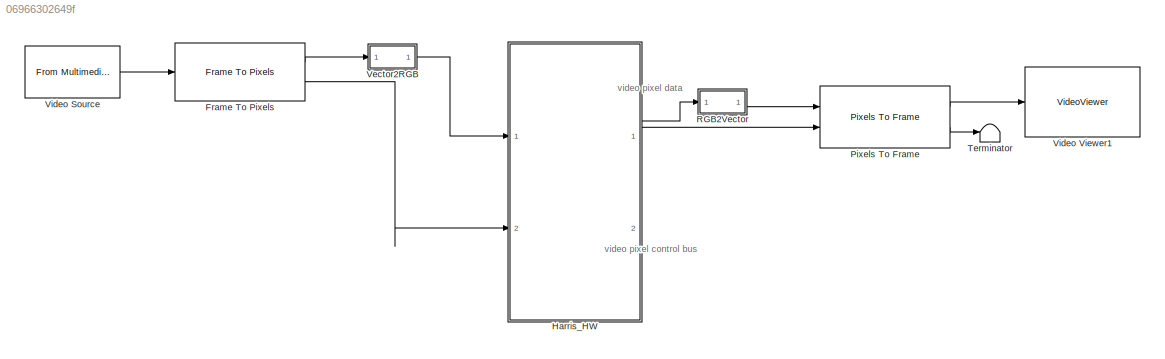
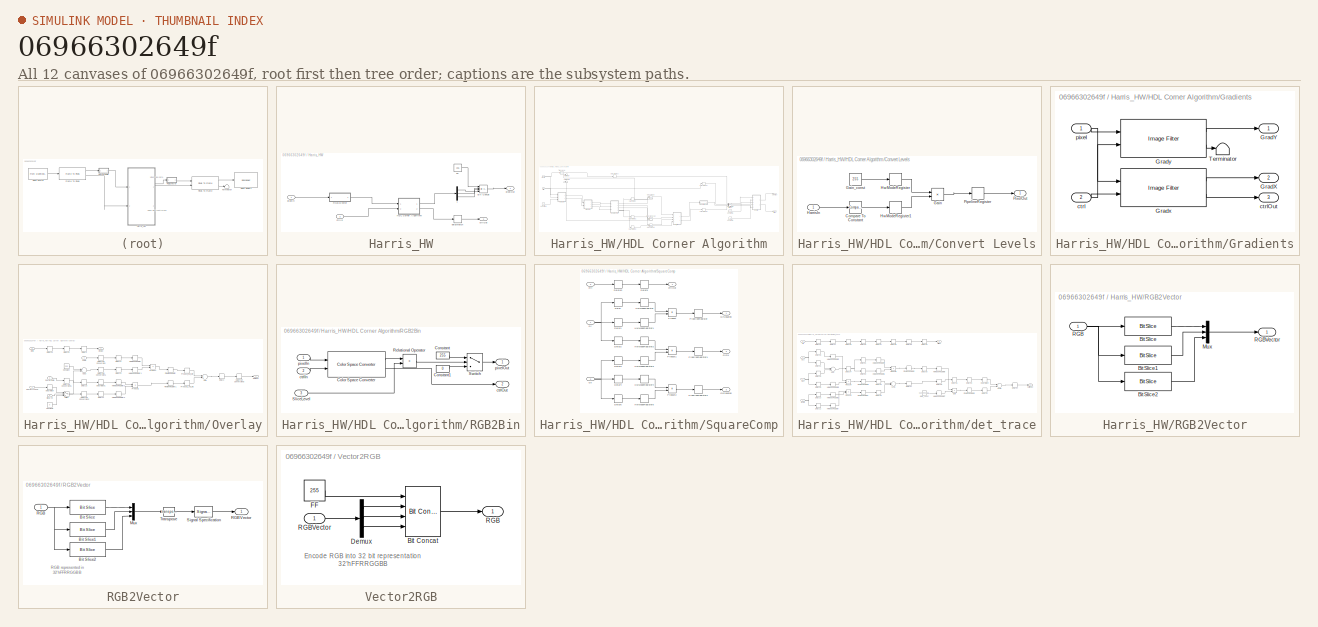
[diagram: thumbnail index - all 12 canvases of the model, root first then tree order]
MODEL slx_06966302649f
KIND model
CONFIG AbsTol = auto
CONFIG EnableMultiTasking = off
CONFIG FixedStep = auto
CONFIG InitFcn = Ts = 1e-3;\nTs_240p = 402*324*Ts;\nTs_480p = 525*800*Ts;\n\n
CONFIG MaxStep = auto
CONFIG MinStep = auto
CONFIG RelTol = 1e-3
CONFIG SampleTimeConstraint = Unconstrained
CONFIG Solver = VariableStepAuto
CONFIG SolverName = VariableStepAuto
CONFIG StartTime = 0.0
CONFIG StopTime = 10.0
BLOCK [Reference] Frame To Pixels  REF=visionhdlio/Frame To Pixels
  Ports = [1, 2]
  SourceBlock = visionhdlio/Frame To Pixels
  SourceProductBaseCode = VT
  SourceProductName = Vision HDL Toolbox
  SourceType = Frame To Pixels
BLOCK [SubSystem] Harris_HW
  Ports = [2, 2]
  RequestExecContextInheritance = off
  TreatAsAtomicUnit = on
BLOCK [Reference] Harris_HW/Bit Concat  REF=hdlsllib/Logic and Bit
Operations/Bit Concat
  Ports = [4, 1]
  SourceBlock = hdlsllib/Logic and Bit\nOperations/Bit Concat
  SourceProductBaseCode = SL
  SourceProductName = Simulink
  SourceType = Bit Concat
BLOCK [Constant] Harris_HW/FF
  OutDataTypeStr = uint8
  SampleTime = -1
  Value = 255
BLOCK [SubSystem] Harris_HW/HDL Corner Algorithm
  Ports = [2, 2]
  RequestExecContextInheritance = off
BLOCK [Constant] Harris_HW/HDL Corner Algorithm/Constant1
  OutDataTypeStr = uint8
  SampleTime = -1
  Value = [0 255 0]
  VectorParams1D = off
BLOCK [Constant] Harris_HW/HDL Corner Algorithm/Constant3
  OutDataTypeStr = uint8
  SampleTime = -1
  Value = 70
BLOCK [Constant] Harris_HW/HDL Corner Algorithm/Constant4
  OutDataTypeStr = uint8
  SampleTime = -1
  Value = 210
BLOCK [SubSystem] Harris_HW/HDL Corner Algorithm/Convert Levels
  Ports = [1, 1]
  RequestExecContextInheritance = off
BLOCK [Reference] Harris_HW/HDL Corner Algorithm/Convert Levels/Compare To Constant  REF=simulink/Logic and Bit
Operations/Compare
To Constant
  Ports = [1, 1]
  SourceBlock = simulink/Logic and Bit\nOperations/Compare\nTo Constant
  SourceProductBaseCode = SL
  SourceProductName = Simulink
  SourceType = Compare To Constant
BLOCK [Product] Harris_HW/HDL Corner Algorithm/Convert Levels/Gain
  InputSameDT = off
  Inputs = **
  OutDataTypeStr = uint8
  Ports = [2, 1]
  RndMeth = Floor
  SampleTime = 0.001
  SaturateOnIntegerOverflow = off
BLOCK [Constant] Harris_HW/HDL Corner Algorithm/Convert Levels/Gain_const
  OutDataTypeStr = uint8
  SampleTime = -1
  Value = 255
BLOCK [Inport] Harris_HW/HDL Corner Algorithm/Convert Levels/HarrisIn
  IconDisplay = Port number
  OutDataTypeStr = fixdt(1, 38, 0)
  PortDimensions = 1
  SampleTime = 0.001
BLOCK [Delay] Harris_HW/HDL Corner Algorithm/Convert Levels/HwModeRegister
  DelayLength = double(1)
  InitialCondition = 0
  InputPortMap = u0
  Ports = [1, 1]
  SampleTime = 0.001
BLOCK [Delay] Harris_HW/HDL Corner Algorithm/Convert Levels/HwModeRegister1
  DelayLength = double(1)
  InitialCondition = 0
  InputPortMap = u0
  Ports = [1, 1]
  SampleTime = 0.001
BLOCK [Delay] Harris_HW/HDL Corner Algorithm/Convert Levels/PipelineRegister
  DelayLength = double(1)
  InitialCondition = 0
  InputPortMap = u0
  Ports = [1, 1]
  SampleTime = 0.001
BLOCK [Outport] Harris_HW/HDL Corner Algorithm/Convert Levels/PixelOut
  IconDisplay = Port number
  VectorParamsAs1DForOutWhenUnconnected = off
BLOCK [Reference] Harris_HW/HDL Corner Algorithm/GaussianGx  REF=visionhdlfilter/Image Filter
  Ports = [2, 2]
  SourceBlock = visionhdlfilter/Image Filter
  SourceProductBaseCode = VT
  SourceProductName = Vision HDL Toolbox
  SourceType = Image Filter
BLOCK [Reference] Harris_HW/HDL Corner Algorithm/GaussianGy  REF=visionhdlfilter/Image Filter
  Ports = [2, 2]
  SourceBlock = visionhdlfilter/Image Filter
  SourceProductBaseCode = VT
  SourceProductName = Vision HDL Toolbox
  SourceType = Image Filter
BLOCK [Reference] Harris_HW/HDL Corner Algorithm/GaussianGyGx  REF=visionhdlfilter/Image Filter
  Ports = [2, 2]
  SourceBlock = visionhdlfilter/Image Filter
  SourceProductBaseCode = VT
  SourceProductName = Vision HDL Toolbox
  SourceType = Image Filter
BLOCK [SubSystem] Harris_HW/HDL Corner Algorithm/Gradients
  Ports = [2, 3]
  RequestExecContextInheritance = off
BLOCK [Outport] Harris_HW/HDL Corner Algorithm/Gradients/GradX
  IconDisplay = Port number
  Port = 2
  VectorParamsAs1DForOutWhenUnconnected = off
BLOCK [Outport] Harris_HW/HDL Corner Algorithm/Gradients/GradY
  IconDisplay = Port number
  VectorParamsAs1DForOutWhenUnconnected = off
BLOCK [Reference] Harris_HW/HDL Corner Algorithm/Gradients/Gradx  REF=visionhdlfilter/Image Filter
  Ports = [2, 2]
  SourceBlock = visionhdlfilter/Image Filter
  SourceProductBaseCode = VT
  SourceProductName = Vision HDL Toolbox
  SourceType = Image Filter
BLOCK [Reference] Harris_HW/HDL Corner Algorithm/Gradients/Grady  REF=visionhdlfilter/Image Filter
  Ports = [2, 2]
  SourceBlock = visionhdlfilter/Image Filter
  SourceProductBaseCode = VT
  SourceProductName = Vision HDL Toolbox
  SourceType = Image Filter
BLOCK [Terminator] Harris_HW/HDL Corner Algorithm/Gradients/Terminator
BLOCK [Inport] Harris_HW/HDL Corner Algorithm/Gradients/ctrl
  IconDisplay = Port number
  Port = 2
  SampleTime = 0.001
BLOCK [Outport] Harris_HW/HDL Corner Algorithm/Gradients/ctrlOut
  IconDisplay = Port number
  Port = 3
  VectorParamsAs1DForOutWhenUnconnected = off
BLOCK [Inport] Harris_HW/HDL Corner Algorithm/Gradients/pixel
  IconDisplay = Port number
  OutDataTypeStr = uint8
  PortDimensions = 1
  SampleTime = 0.001
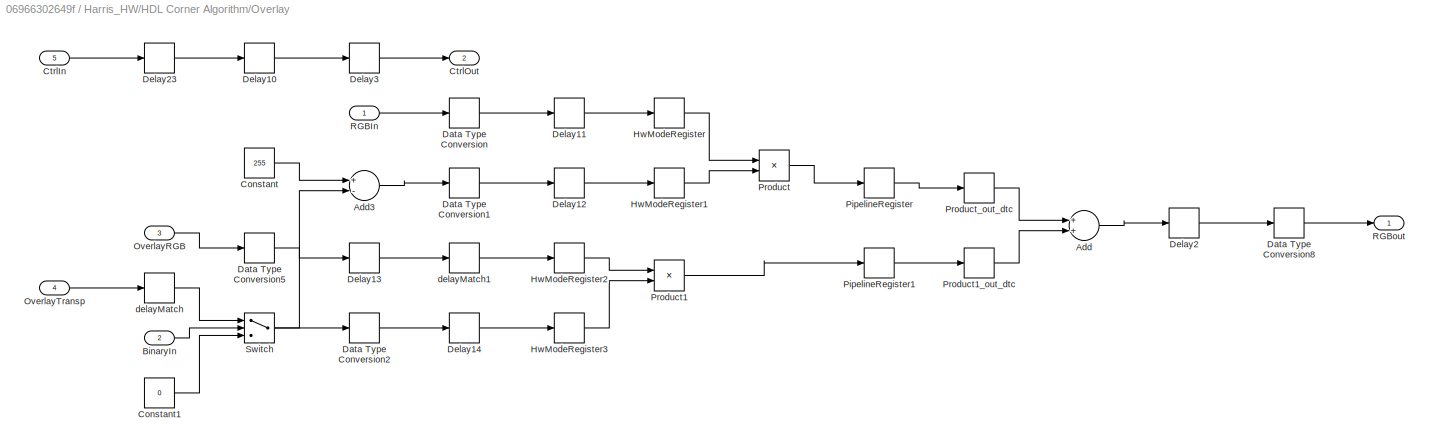
BLOCK [SubSystem] Harris_HW/HDL Corner Algorithm/Overlay
  Ports = [5, 2]
  RequestExecContextInheritance = off
BLOCK [Sum] Harris_HW/HDL Corner Algorithm/Overlay/Add
  AccumDataTypeStr = fixdt(0, 9, 8)
  InputSameDT = off
  OutDataTypeStr = fixdt(0, 8, 8)
  Ports = [2, 1]
  SampleTime = 0.001
  SaturateOnIntegerOverflow = off
BLOCK [Sum] Harris_HW/HDL Corner Algorithm/Overlay/Add3
  AccumDataTypeStr = uint8
  InputSameDT = off
  Inputs = +-
  OutDataTypeStr = uint8
  Ports = [2, 1]
  SampleTime = 0.001
  SaturateOnIntegerOverflow = off
BLOCK [Inport] Harris_HW/HDL Corner Algorithm/Overlay/BinaryIn
  IconDisplay = Port number
  OutDataTypeStr = uint8
  Port = 2
  PortDimensions = 1
  SampleTime = 0.001
BLOCK [Constant] Harris_HW/HDL Corner Algorithm/Overlay/Constant
  OutDataTypeStr = uint8
  SampleTime = -1
  Value = 255
BLOCK [Constant] Harris_HW/HDL Corner Algorithm/Overlay/Constant1
  OutDataTypeStr = uint8
  SampleTime = -1
  Value = 0
BLOCK [Inport] Harris_HW/HDL Corner Algorithm/Overlay/CtrlIn
  IconDisplay = Port number
  Port = 5
  SampleTime = 0.001
BLOCK [Outport] Harris_HW/HDL Corner Algorithm/Overlay/CtrlOut 
  IconDisplay = Port number
  Port = 2
  VectorParamsAs1DForOutWhenUnconnected = off
BLOCK [DataTypeConversion] Harris_HW/HDL Corner Algorithm/Overlay/Data Type Conversion
  ConvertRealWorld = Stored Integer (SI)
  OutDataTypeStr = fixdt(0, 8, 8)
  RndMeth = Floor
  SampleTime = 0.001
  SaturateOnIntegerOverflow = off
BLOCK [DataTypeConversion] Harris_HW/HDL Corner Algorithm/Overlay/Data Type Conversion1
  ConvertRealWorld = Stored Integer (SI)
  OutDataTypeStr = fixdt(0, 8, 8)
  RndMeth = Floor
  SampleTime = 0.001
  SaturateOnIntegerOverflow = off
BLOCK [DataTypeConversion] Harris_HW/HDL Corner Algorithm/Overlay/Data Type Conversion2
  ConvertRealWorld = Stored Integer (SI)
  OutDataTypeStr = fixdt(0, 8, 8)
  RndMeth = Floor
  SampleTime = 0.001
  SaturateOnIntegerOverflow = off
BLOCK [DataTypeConversion] Harris_HW/HDL Corner Algorithm/Overlay/Data Type Conversion5
  ConvertRealWorld = Stored Integer (SI)
  OutDataTypeStr = fixdt(0, 8, 8)
  RndMeth = Floor
  SampleTime = 0.001
  SaturateOnIntegerOverflow = off
BLOCK [DataTypeConversion] Harris_HW/HDL Corner Algorithm/Overlay/Data Type Conversion8
  ConvertRealWorld = Stored Integer (SI)
  OutDataTypeStr = uint8
  RndMeth = Floor
  SampleTime = 0.001
  SaturateOnIntegerOverflow = off
BLOCK [Delay] Harris_HW/HDL Corner Algorithm/Overlay/Delay10
  DelayLength = double(1)
  InputPortMap = u0
  Ports = [1, 1]
  SampleTime = 0.001
BLOCK [Delay] Harris_HW/HDL Corner Algorithm/Overlay/Delay11
  DelayLength = double(1)
  InitialCondition = 0
  InputPortMap = u0
  Ports = [1, 1]
  SampleTime = 0.001
BLOCK [Delay] Harris_HW/HDL Corner Algorithm/Overlay/Delay12
  DelayLength = double(1)
  InitialCondition = 0
  InputPortMap = u0
  Ports = [1, 1]
  SampleTime = 0.001
BLOCK [Delay] Harris_HW/HDL Corner Algorithm/Overlay/Delay13
  DelayLength = double(1)
  InitialCondition = 0
  InputPortMap = u0
  Ports = [1, 1]
  SampleTime = 0.001
BLOCK [Delay] Harris_HW/HDL Corner Algorithm/Overlay/Delay14
  DelayLength = double(1)
  InitialCondition = 0
  InputPortMap = u0
  Ports = [1, 1]
  SampleTime = 0.001
BLOCK [Delay] Harris_HW/HDL Corner Algorithm/Overlay/Delay2
  DelayLength = double(1)
  InitialCondition = 0
  InputPortMap = u0
  Ports = [1, 1]
  SampleTime = 0.001
BLOCK [Delay] Harris_HW/HDL Corner Algorithm/Overlay/Delay23
  DelayLength = double(1)
  InputPortMap = u0
  Ports = [1, 1]
  SampleTime = 0.001
BLOCK [Delay] Harris_HW/HDL Corner Algorithm/Overlay/Delay3
  DelayLength = double(1)
  InputPortMap = u0
  Ports = [1, 1]
  SampleTime = 0.001
BLOCK [Delay] Harris_HW/HDL Corner Algorithm/Overlay/HwModeRegister
  DelayLength = double(1)
  InitialCondition = 0
  InputPortMap = u0
  Ports = [1, 1]
  SampleTime = 0.001
BLOCK [Delay] Harris_HW/HDL Corner Algorithm/Overlay/HwModeRegister1
  DelayLength = double(1)
  InitialCondition = 0
  InputPortMap = u0
  Ports = [1, 1]
  SampleTime = 0.001
BLOCK [Delay] Harris_HW/HDL Corner Algorithm/Overlay/HwModeRegister2
  DelayLength = double(1)
  InitialCondition = 0
  InputPortMap = u0
  Ports = [1, 1]
  SampleTime = 0.001
BLOCK [Delay] Harris_HW/HDL Corner Algorithm/Overlay/HwModeRegister3
  DelayLength = double(1)
  InitialCondition = 0
  InputPortMap = u0
  Ports = [1, 1]
  SampleTime = 0.001
BLOCK [Inport] Harris_HW/HDL Corner Algorithm/Overlay/OverlayRGB
  IconDisplay = Port number
  OutDataTypeStr = uint8
  Port = 3
  PortDimensions = [1 3]
  SampleTime = 0.001
BLOCK [Inport] Harris_HW/HDL Corner Algorithm/Overlay/OverlayTransp
  IconDisplay = Port number
  OutDataTypeStr = uint8
  Port = 4
  PortDimensions = 1
  SampleTime = 0.001
BLOCK [Delay] Harris_HW/HDL Corner Algorithm/Overlay/PipelineRegister
  DelayLength = double(1)
  InitialCondition = 0
  InputPortMap = u0
  Ports = [1, 1]
  SampleTime = 0.001
BLOCK [Delay] Harris_HW/HDL Corner Algorithm/Overlay/PipelineRegister1
  DelayLength = double(1)
  InitialCondition = 0
  InputPortMap = u0
  Ports = [1, 1]
  SampleTime = 0.001
BLOCK [Product] Harris_HW/HDL Corner Algorithm/Overlay/Product
  InputSameDT = off
  Inputs = **
  OutDataTypeStr = fixdt(0, 16, 16)
  Ports = [2, 1]
  RndMeth = Floor
  SampleTime = 0.001
  SaturateOnIntegerOverflow = off
BLOCK [Product] Harris_HW/HDL Corner Algorithm/Overlay/Product1
  InputSameDT = off
  Inputs = **
  OutDataTypeStr = fixdt(0, 16, 16)
  Ports = [2, 1]
  RndMeth = Floor
  SampleTime = 0.001
  SaturateOnIntegerOverflow = off
BLOCK [DataTypeConversion] Harris_HW/HDL Corner Algorithm/Overlay/Product1_out_dtc
  OutDataTypeStr = fixdt(0, 8, 8)
  RndMeth = Floor
  SampleTime = 0.001
BLOCK [DataTypeConversion] Harris_HW/HDL Corner Algorithm/Overlay/Product_out_dtc
  OutDataTypeStr = fixdt(0, 8, 8)
  RndMeth = Floor
  SampleTime = 0.001
BLOCK [Inport] Harris_HW/HDL Corner Algorithm/Overlay/RGBIn
  IconDisplay = Port number
  OutDataTypeStr = uint8
  PortDimensions = [1 3]
  SampleTime = 0.001
BLOCK [Outport] Harris_HW/HDL Corner Algorithm/Overlay/RGBout
  IconDisplay = Port number
  VectorParamsAs1DForOutWhenUnconnected = off
BLOCK [Switch] Harris_HW/HDL Corner Algorithm/Overlay/Switch
  Criteria = u2 ~= 0
  InputSameDT = off
  OutDataTypeStr = uint8
  SampleTime = 0.001
  SaturateOnIntegerOverflow = off
  Threshold = double(0)
BLOCK [Delay] Harris_HW/HDL Corner Algorithm/Overlay/delayMatch
  DelayLength = double(5)
  InitialCondition = 0
  InputPortMap = u0
  Ports = [1, 1]
  SampleTime = 0.001
BLOCK [Delay] Harris_HW/HDL Corner Algorithm/Overlay/delayMatch1
  DelayLength = double(5)
  InitialCondition = 0
  InputPortMap = u0
  Ports = [1, 1]
  SampleTime = 0.001
BLOCK [Reference] Harris_HW/HDL Corner Algorithm/Pixel Stream Aligner  REF=visionhdlutilities/Pixel Stream Aligner
  Ports = [4, 3]
  SourceBlock = visionhdlutilities/Pixel Stream Aligner
  SourceProductBaseCode = VT
  SourceProductName = Vision HDL Toolbox
  SourceType = visionhdl.PixelStreamAligner
BLOCK [SubSystem] Harris_HW/HDL Corner Algorithm/RGB2Bin
  Ports = [3, 2]
  RequestExecContextInheritance = off
BLOCK [Reference] Harris_HW/HDL Corner Algorithm/RGB2Bin/Color Space Converter  REF=visionhdlconversions/Color Space Converter
  Ports = [2, 2]
  SourceBlock = visionhdlconversions/Color Space Converter
  SourceProductBaseCode = VT
  SourceProductName = Vision HDL Toolbox
  SourceType = Color Space Converter
BLOCK [Constant] Harris_HW/HDL Corner Algorithm/RGB2Bin/Constant
  OutDataTypeStr = uint8
  SampleTime = -1
  Value = 255
BLOCK [Constant] Harris_HW/HDL Corner Algorithm/RGB2Bin/Constant1
  OutDataTypeStr = uint8
  SampleTime = -1
  Value = 0
BLOCK [RelationalOperator] Harris_HW/HDL Corner Algorithm/RGB2Bin/Relational Operator
  InputSameDT = off
  Operator = >
  OutDataTypeStr = boolean
  Ports = [2, 1]
BLOCK [Inport] Harris_HW/HDL Corner Algorithm/RGB2Bin/SliceLevel
  IconDisplay = Port number
  OutDataTypeStr = uint8
  Port = 3
  PortDimensions = 1
  SampleTime = 0.001
BLOCK [Switch] Harris_HW/HDL Corner Algorithm/RGB2Bin/Switch
  Criteria = u2 ~= 0
  InputSameDT = off
  SaturateOnIntegerOverflow = off
BLOCK [Inport] Harris_HW/HDL Corner Algorithm/RGB2Bin/ctrlIn
  IconDisplay = Port number
  Port = 2
  SampleTime = 0.001
BLOCK [Outport] Harris_HW/HDL Corner Algorithm/RGB2Bin/ctrlOut
  IconDisplay = Port number
  Port = 2
  VectorParamsAs1DForOutWhenUnconnected = off
BLOCK [Inport] Harris_HW/HDL Corner Algorithm/RGB2Bin/pixelIn
  IconDisplay = Port number
  OutDataTypeStr = uint8
  PortDimensions = [3]
  SampleTime = 0.001
BLOCK [Outport] Harris_HW/HDL Corner Algorithm/RGB2Bin/pixelOut
  IconDisplay = Port number
  VectorParamsAs1DForOutWhenUnconnected = off
BLOCK [SubSystem] Harris_HW/HDL Corner Algorithm/SquareComp
  Ports = [3, 4]
  RequestExecContextInheritance = off
BLOCK [Delay] Harris_HW/HDL Corner Algorithm/SquareComp/Delay
  DelayLength = double(1)
  InitialCondition = 0
  InputPortMap = u0
  Ports = [1, 1]
  SampleTime = 0.001
BLOCK [Delay] Harris_HW/HDL Corner Algorithm/SquareComp/Delay1
  DelayLength = double(1)
  InitialCondition = 0
  InputPortMap = u0
  Ports = [1, 1]
  SampleTime = 0.001
BLOCK [Delay] Harris_HW/HDL Corner Algorithm/SquareComp/Delay10
  DelayLength = double(1)
  InputPortMap = u0
  Ports = [1, 1]
  SampleTime = 0.001
BLOCK [Delay] Harris_HW/HDL Corner Algorithm/SquareComp/Delay2
  DelayLength = double(1)
  InitialCondition = 0
  InputPortMap = u0
  Ports = [1, 1]
  SampleTime = 0.001
BLOCK [Delay] Harris_HW/HDL Corner Algorithm/SquareComp/Delay3
  DelayLength = double(1)
  InitialCondition = 0
  InputPortMap = u0
  Ports = [1, 1]
  SampleTime = 0.001
BLOCK [Delay] Harris_HW/HDL Corner Algorithm/SquareComp/Delay4
  DelayLength = double(1)
  InitialCondition = 0
  InputPortMap = u0
  Ports = [1, 1]
  SampleTime = 0.001
BLOCK [Delay] Harris_HW/HDL Corner Algorithm/SquareComp/Delay5
  DelayLength = double(1)
  InitialCondition = 0
  InputPortMap = u0
  Ports = [1, 1]
  SampleTime = 0.001
BLOCK [Delay] Harris_HW/HDL Corner Algorithm/SquareComp/Delay9
  DelayLength = double(1)
  InputPortMap = u0
  Ports = [1, 1]
  SampleTime = 0.001
BLOCK [Inport] Harris_HW/HDL Corner Algorithm/SquareComp/Gx
  IconDisplay = Port number
  OutDataTypeStr = fixdt(1, 9, 0)
  Port = 2
  PortDimensions = 1
  SampleTime = 0.001
BLOCK [Outport] Harris_HW/HDL Corner Algorithm/SquareComp/GxSquared
  IconDisplay = Port number
  Port = 3
  VectorParamsAs1DForOutWhenUnconnected = off
BLOCK [Inport] Harris_HW/HDL Corner Algorithm/SquareComp/Gy
  IconDisplay = Port number
  OutDataTypeStr = fixdt(1, 9, 0)
  PortDimensions = 1
  SampleTime = 0.001
BLOCK [Outport] Harris_HW/HDL Corner Algorithm/SquareComp/GyGx
  IconDisplay = Port number
  Port = 2
  VectorParamsAs1DForOutWhenUnconnected = off
BLOCK [Outport] Harris_HW/HDL Corner Algorithm/SquareComp/GySquared
  IconDisplay = Port number
  VectorParamsAs1DForOutWhenUnconnected = off
BLOCK [Delay] Harris_HW/HDL Corner Algorithm/SquareComp/HwModeRegister
  DelayLength = double(1)
  InitialCondition = 0
  InputPortMap = u0
  Ports = [1, 1]
  SampleTime = 0.001
BLOCK [Delay] Harris_HW/HDL Corner Algorithm/SquareComp/HwModeRegister1
  DelayLength = double(1)
  InitialCondition = 0
  InputPortMap = u0
  Ports = [1, 1]
  SampleTime = 0.001
BLOCK [Delay] Harris_HW/HDL Corner Algorithm/SquareComp/HwModeRegister2
  DelayLength = double(1)
  InitialCondition = 0
  InputPortMap = u0
  Ports = [1, 1]
  SampleTime = 0.001
BLOCK [Delay] Harris_HW/HDL Corner Algorithm/SquareComp/HwModeRegister3
  DelayLength = double(1)
  InitialCondition = 0
  InputPortMap = u0
  Ports = [1, 1]
  SampleTime = 0.001
BLOCK [Delay] Harris_HW/HDL Corner Algorithm/SquareComp/HwModeRegister4
  DelayLength = double(1)
  InitialCondition = 0
  InputPortMap = u0
  Ports = [1, 1]
  SampleTime = 0.001
BLOCK [Delay] Harris_HW/HDL Corner Algorithm/SquareComp/HwModeRegister5
  DelayLength = double(1)
  InitialCondition = 0
  InputPortMap = u0
  Ports = [1, 1]
  SampleTime = 0.001
BLOCK [Delay] Harris_HW/HDL Corner Algorithm/SquareComp/PipelineRegister
  DelayLength = double(1)
  InitialCondition = 0
  InputPortMap = u0
  Ports = [1, 1]
  SampleTime = 0.001
BLOCK [Delay] Harris_HW/HDL Corner Algorithm/SquareComp/PipelineRegister1
  DelayLength = double(1)
  InitialCondition = 0
  InputPortMap = u0
  Ports = [1, 1]
  SampleTime = 0.001
BLOCK [Delay] Harris_HW/HDL Corner Algorithm/SquareComp/PipelineRegister2
  DelayLength = double(1)
  InitialCondition = 0
  InputPortMap = u0
  Ports = [1, 1]
  SampleTime = 0.001
BLOCK [Product] Harris_HW/HDL Corner Algorithm/SquareComp/Product
  InputSameDT = off
  Inputs = **
  OutDataTypeStr = fixdt(1, 18, 0)
  Ports = [2, 1]
  RndMeth = Floor
  SampleTime = 0.001
  SaturateOnIntegerOverflow = off
BLOCK [Product] Harris_HW/HDL Corner Algorithm/SquareComp/Product1
  InputSameDT = off
  Inputs = **
  OutDataTypeStr = fixdt(1, 18, 0)
  Ports = [2, 1]
  RndMeth = Floor
  SampleTime = 0.001
  SaturateOnIntegerOverflow = off
BLOCK [Product] Harris_HW/HDL Corner Algorithm/SquareComp/Product2
  InputSameDT = off
  Inputs = **
  OutDataTypeStr = fixdt(1, 18, 0)
  Ports = [2, 1]
  RndMeth = Floor
  SampleTime = 0.001
  SaturateOnIntegerOverflow = off
BLOCK [Inport] Harris_HW/HDL Corner Algorithm/SquareComp/ctrl
  IconDisplay = Port number
  Port = 3
  SampleTime = 0.001
BLOCK [Outport] Harris_HW/HDL Corner Algorithm/SquareComp/ctrlOut
  IconDisplay = Port number
  Port = 4
  VectorParamsAs1DForOutWhenUnconnected = off
BLOCK [Terminator] Harris_HW/HDL Corner Algorithm/Terminator
BLOCK [Terminator] Harris_HW/HDL Corner Algorithm/Terminator1
BLOCK [Math] Harris_HW/HDL Corner Algorithm/Transpose
  Operator = transpose
  Ports = [1, 1]
BLOCK [Inport] Harris_HW/HDL Corner Algorithm/ctrlIn
  IconDisplay = Port number
  Port = 2
  SampleTime = 0.001
BLOCK [Outport] Harris_HW/HDL Corner Algorithm/ctrlOut
  IconDisplay = Port number
  Port = 2
  VectorParamsAs1DForOutWhenUnconnected = off
BLOCK [Delay] Harris_HW/HDL Corner Algorithm/delayMatch
  DelayLength = double(1)
  InitialCondition = 0
  InputPortMap = u0
  Ports = [1, 1]
  SampleTime = 0.001
BLOCK [Delay] Harris_HW/HDL Corner Algorithm/delayMatch1
  DelayLength = double(1)
  InitialCondition = 0
  InputPortMap = u0
  Ports = [1, 1]
  SampleTime = 0.001
BLOCK [Delay] Harris_HW/HDL Corner Algorithm/delayMatch2
  DelayLength = double(1)
  InitialCondition = 0
  InputPortMap = u0
  Ports = [1, 1]
  SampleTime = 0.001
BLOCK [Delay] Harris_HW/HDL Corner Algorithm/delayMatch3
  DelayLength = double(5)
  InitialCondition = 0
  InputPortMap = u0
  Ports = [1, 1]
  SampleTime = 0.001
BLOCK [Delay] Harris_HW/HDL Corner Algorithm/delayMatch4
  DelayLength = double(5)
  InitialCondition = 0
  InputPortMap = u0
  Ports = [1, 1]
  SampleTime = 0.001
BLOCK [Delay] Harris_HW/HDL Corner Algorithm/delayMatch5
  DelayLength = double(4)
  InitialCondition = 0
  InputPortMap = u0
  Ports = [1, 1]
  SampleTime = 0.001
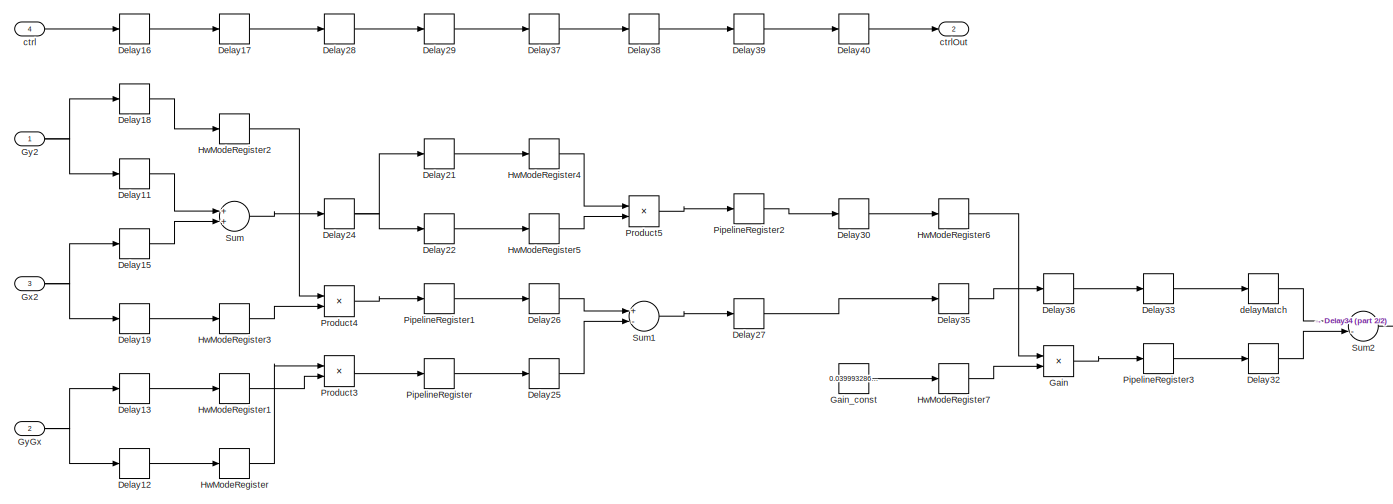
[diagram: Harris_HW/HDL Corner Algorithm/det_trace - part 1/2, most of the canvas]
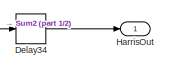
[diagram: Harris_HW/HDL Corner Algorithm/det_trace - part 2/2, middle right region]
BLOCK [SubSystem] Harris_HW/HDL Corner Algorithm/det_trace
  Ports = [4, 2]
  RequestExecContextInheritance = off
BLOCK [Delay] Harris_HW/HDL Corner Algorithm/det_trace/Delay11
  DelayLength = double(1)
  InitialCondition = 0
  InputPortMap = u0
  Ports = [1, 1]
  SampleTime = 0.001
BLOCK [Delay] Harris_HW/HDL Corner Algorithm/det_trace/Delay12
  DelayLength = double(1)
  InitialCondition = 0
  InputPortMap = u0
  Ports = [1, 1]
  SampleTime = 0.001
BLOCK [Delay] Harris_HW/HDL Corner Algorithm/det_trace/Delay13
  DelayLength = double(1)
  InitialCondition = 0
  InputPortMap = u0
  Ports = [1, 1]
  SampleTime = 0.001
BLOCK [Delay] Harris_HW/HDL Corner Algorithm/det_trace/Delay15
  DelayLength = double(1)
  InitialCondition = 0
  InputPortMap = u0
  Ports = [1, 1]
  SampleTime = 0.001
BLOCK [Delay] Harris_HW/HDL Corner Algorithm/det_trace/Delay16
  DelayLength = double(1)
  InputPortMap = u0
  Ports = [1, 1]
  SampleTime = 0.001
BLOCK [Delay] Harris_HW/HDL Corner Algorithm/det_trace/Delay17
  DelayLength = double(1)
  InputPortMap = u0
  Ports = [1, 1]
  SampleTime = 0.001
BLOCK [Delay] Harris_HW/HDL Corner Algorithm/det_trace/Delay18
  DelayLength = double(1)
  InitialCondition = 0
  InputPortMap = u0
  Ports = [1, 1]
  SampleTime = 0.001
BLOCK [Delay] Harris_HW/HDL Corner Algorithm/det_trace/Delay19
  DelayLength = double(1)
  InitialCondition = 0
  InputPortMap = u0
  Ports = [1, 1]
  SampleTime = 0.001
BLOCK [Delay] Harris_HW/HDL Corner Algorithm/det_trace/Delay21
  DelayLength = double(1)
  InitialCondition = 0
  InputPortMap = u0
  Ports = [1, 1]
  SampleTime = 0.001
BLOCK [Delay] Harris_HW/HDL Corner Algorithm/det_trace/Delay22
  DelayLength = double(1)
  InitialCondition = 0
  InputPortMap = u0
  Ports = [1, 1]
  SampleTime = 0.001
BLOCK [Delay] Harris_HW/HDL Corner Algorithm/det_trace/Delay24
  DelayLength = double(1)
  InitialCondition = 0
  InputPortMap = u0
  Ports = [1, 1]
  SampleTime = 0.001
BLOCK [Delay] Harris_HW/HDL Corner Algorithm/det_trace/Delay25
  DelayLength = double(1)
  InitialCondition = 0
  InputPortMap = u0
  Ports = [1, 1]
  SampleTime = 0.001
BLOCK [Delay] Harris_HW/HDL Corner Algorithm/det_trace/Delay26
  DelayLength = double(1)
  InitialCondition = 0
  InputPortMap = u0
  Ports = [1, 1]
  SampleTime = 0.001
BLOCK [Delay] Harris_HW/HDL Corner Algorithm/det_trace/Delay27
  DelayLength = double(1)
  InitialCondition = 0
  InputPortMap = u0
  Ports = [1, 1]
  SampleTime = 0.001
BLOCK [Delay] Harris_HW/HDL Corner Algorithm/det_trace/Delay28
  DelayLength = double(1)
  InputPortMap = u0
  Ports = [1, 1]
  SampleTime = 0.001
BLOCK [Delay] Harris_HW/HDL Corner Algorithm/det_trace/Delay29
  DelayLength = double(1)
  InputPortMap = u0
  Ports = [1, 1]
  SampleTime = 0.001
BLOCK [Delay] Harris_HW/HDL Corner Algorithm/det_trace/Delay30
  DelayLength = double(1)
  InitialCondition = 0
  InputPortMap = u0
  Ports = [1, 1]
  SampleTime = 0.001
BLOCK [Delay] Harris_HW/HDL Corner Algorithm/det_trace/Delay32
  DelayLength = double(1)
  InitialCondition = 0
  InputPortMap = u0
  Ports = [1, 1]
  SampleTime = 0.001
BLOCK [Delay] Harris_HW/HDL Corner Algorithm/det_trace/Delay33
  DelayLength = double(1)
  InitialCondition = 0
  InputPortMap = u0
  Ports = [1, 1]
  SampleTime = 0.001
BLOCK [Delay] Harris_HW/HDL Corner Algorithm/det_trace/Delay34
  DelayLength = double(1)
  InitialCondition = 0
  InputPortMap = u0
  Ports = [1, 1]
  SampleTime = 0.001
BLOCK [Delay] Harris_HW/HDL Corner Algorithm/det_trace/Delay35
  DelayLength = double(1)
  InitialCondition = 0
  InputPortMap = u0
  Ports = [1, 1]
  SampleTime = 0.001
BLOCK [Delay] Harris_HW/HDL Corner Algorithm/det_trace/Delay36
  DelayLength = double(1)
  InitialCondition = 0
  InputPortMap = u0
  Ports = [1, 1]
  SampleTime = 0.001
BLOCK [Delay] Harris_HW/HDL Corner Algorithm/det_trace/Delay37
  DelayLength = double(1)
  InputPortMap = u0
  Ports = [1, 1]
  SampleTime = 0.001
BLOCK [Delay] Harris_HW/HDL Corner Algorithm/det_trace/Delay38
  DelayLength = double(1)
  InputPortMap = u0
  Ports = [1, 1]
  SampleTime = 0.001
BLOCK [Delay] Harris_HW/HDL Corner Algorithm/det_trace/Delay39
  DelayLength = double(1)
  InputPortMap = u0
  Ports = [1, 1]
  SampleTime = 0.001
BLOCK [Delay] Harris_HW/HDL Corner Algorithm/det_trace/Delay40
  DelayLength = double(1)
  InputPortMap = u0
  Ports = [1, 1]
  SampleTime = 0.001
BLOCK [Product] Harris_HW/HDL Corner Algorithm/det_trace/Gain
  InputSameDT = off
  Inputs = **
  OutDataTypeStr = fixdt(1, 36, 0)
  Ports = [2, 1]
  RndMeth = Floor
  SampleTime = 0.001
  SaturateOnIntegerOverflow = off
BLOCK [Constant] Harris_HW/HDL Corner Algorithm/det_trace/Gain_const
  OutDataTypeStr = fixdt(0, 16, 16)
  SampleTime = -1
  Value = 0.0399932861328125
BLOCK [Inport] Harris_HW/HDL Corner Algorithm/det_trace/Gx2
  IconDisplay = Port number
  OutDataTypeStr = fixdt(1, 18, 0)
  Port = 3
  PortDimensions = 1
  SampleTime = 0.001
BLOCK [Inport] Harris_HW/HDL Corner Algorithm/det_trace/Gy2
  IconDisplay = Port number
  OutDataTypeStr = fixdt(1, 18, 0)
  PortDimensions = 1
  SampleTime = 0.001
BLOCK [Inport] Harris_HW/HDL Corner Algorithm/det_trace/GyGx
  IconDisplay = Port number
  OutDataTypeStr = fixdt(1, 18, 0)
  Port = 2
  PortDimensions = 1
  SampleTime = 0.001
BLOCK [Outport] Harris_HW/HDL Corner Algorithm/det_trace/HarrisOut
  IconDisplay = Port number
  VectorParamsAs1DForOutWhenUnconnected = off
BLOCK [Delay] Harris_HW/HDL Corner Algorithm/det_trace/HwModeRegister
  DelayLength = double(1)
  InitialCondition = 0
  InputPortMap = u0
  Ports = [1, 1]
  SampleTime = 0.001
BLOCK [Delay] Harris_HW/HDL Corner Algorithm/det_trace/HwModeRegister1
  DelayLength = double(1)
  InitialCondition = 0
  InputPortMap = u0
  Ports = [1, 1]
  SampleTime = 0.001
BLOCK [Delay] Harris_HW/HDL Corner Algorithm/det_trace/HwModeRegister2
  DelayLength = double(1)
  InitialCondition = 0
  InputPortMap = u0
  Ports = [1, 1]
  SampleTime = 0.001
BLOCK [Delay] Harris_HW/HDL Corner Algorithm/det_trace/HwModeRegister3
  DelayLength = double(1)
  InitialCondition = 0
  InputPortMap = u0
  Ports = [1, 1]
  SampleTime = 0.001
BLOCK [Delay] Harris_HW/HDL Corner Algorithm/det_trace/HwModeRegister4
  DelayLength = double(1)
  InitialCondition = 0
  InputPortMap = u0
  Ports = [1, 1]
  SampleTime = 0.001
BLOCK [Delay] Harris_HW/HDL Corner Algorithm/det_trace/HwModeRegister5
  DelayLength = double(1)
  InitialCondition = 0
  InputPortMap = u0
  Ports = [1, 1]
  SampleTime = 0.001
BLOCK [Delay] Harris_HW/HDL Corner Algorithm/det_trace/HwModeRegister6
  DelayLength = double(1)
  InitialCondition = 0
  InputPortMap = u0
  Ports = [1, 1]
  SampleTime = 0.001
BLOCK [Delay] Harris_HW/HDL Corner Algorithm/det_trace/HwModeRegister7
  DelayLength = double(1)
  InitialCondition = 0
  InputPortMap = u0
  Ports = [1, 1]
  SampleTime = 0.001
BLOCK [Delay] Harris_HW/HDL Corner Algorithm/det_trace/PipelineRegister
  DelayLength = double(1)
  InitialCondition = 0
  InputPortMap = u0
  Ports = [1, 1]
  SampleTime = 0.001
BLOCK [Delay] Harris_HW/HDL Corner Algorithm/det_trace/PipelineRegister1
  DelayLength = double(1)
  InitialCondition = 0
  InputPortMap = u0
  Ports = [1, 1]
  SampleTime = 0.001
BLOCK [Delay] Harris_HW/HDL Corner Algorithm/det_trace/PipelineRegister2
  DelayLength = double(1)
  InitialCondition = 0
  InputPortMap = u0
  Ports = [1, 1]
  SampleTime = 0.001
BLOCK [Delay] Harris_HW/HDL Corner Algorithm/det_trace/PipelineRegister3
  DelayLength = double(1)
  InitialCondition = 0
  InputPortMap = u0
  Ports = [1, 1]
  SampleTime = 0.001
BLOCK [Product] Harris_HW/HDL Corner Algorithm/det_trace/Product3
  InputSameDT = off
  Inputs = **
  OutDataTypeStr = fixdt(1, 36, 0)
  Ports = [2, 1]
  RndMeth = Floor
  SampleTime = 0.001
  SaturateOnIntegerOverflow = off
BLOCK [Product] Harris_HW/HDL Corner Algorithm/det_trace/Product4
  InputSameDT = off
  Inputs = **
  OutDataTypeStr = fixdt(1, 36, 0)
  Ports = [2, 1]
  RndMeth = Floor
  SampleTime = 0.001
  SaturateOnIntegerOverflow = off
BLOCK [Product] Harris_HW/HDL Corner Algorithm/det_trace/Product5
  InputSameDT = off
  Inputs = **
  OutDataTypeStr = fixdt(1, 36, 0)
  Ports = [2, 1]
  RndMeth = Floor
  SampleTime = 0.001
  SaturateOnIntegerOverflow = off
BLOCK [Sum] Harris_HW/HDL Corner Algorithm/det_trace/Sum
  AccumDataTypeStr = fixdt(1, 19, 0)
  InputSameDT = off
  OutDataTypeStr = fixdt(1, 18, 0)
  Ports = [2, 1]
  SampleTime = 0.001
  SaturateOnIntegerOverflow = off
BLOCK [Sum] Harris_HW/HDL Corner Algorithm/det_trace/Sum1
  AccumDataTypeStr = fixdt(1, 37, 0)
  InputSameDT = off
  Inputs = +-
  OutDataTypeStr = fixdt(1, 37, 0)
  Ports = [2, 1]
  SampleTime = 0.001
  SaturateOnIntegerOverflow = off
BLOCK [Sum] Harris_HW/HDL Corner Algorithm/det_trace/Sum2
  AccumDataTypeStr = fixdt(1, 38, 0)
  InputSameDT = off
  Inputs = +-
  OutDataTypeStr = fixdt(1, 38, 0)
  Ports = [2, 1]
  SampleTime = 0.001
  SaturateOnIntegerOverflow = off
BLOCK [Inport] Harris_HW/HDL Corner Algorithm/det_trace/ctrl
  IconDisplay = Port number
  Port = 4
  SampleTime = 0.001
BLOCK [Outport] Harris_HW/HDL Corner Algorithm/det_trace/ctrlOut
  IconDisplay = Port number
  Port = 2
  VectorParamsAs1DForOutWhenUnconnected = off
BLOCK [Delay] Harris_HW/HDL Corner Algorithm/det_trace/delayMatch
  DelayLength = double(1)
  InitialCondition = 0
  InputPortMap = u0
  Ports = [1, 1]
  SampleTime = 0.001
BLOCK [Inport] Harris_HW/HDL Corner Algorithm/pixelIn
  IconDisplay = Port number
  OutDataTypeStr = uint8
  PortDimensions = [3]
  SampleTime = 0.001
BLOCK [Outport] Harris_HW/HDL Corner Algorithm/pixelOut
  IconDisplay = Port number
  VectorParamsAs1DForOutWhenUnconnected = off
BLOCK [SubSystem] Harris_HW/RGB2Vector
  Ports = [1, 1]
  RequestExecContextInheritance = off
BLOCK [Reference] Harris_HW/RGB2Vector/Bit Slice  REF=hdlsllib/Logic and Bit
Operations/Bit Slice
  Ports = [1, 1]
  SourceBlock = hdlsllib/Logic and Bit\nOperations/Bit Slice
  SourceProductBaseCode = HD
  SourceProductName = HDL Coder
  SourceType = Bit Slice
BLOCK [Reference] Harris_HW/RGB2Vector/Bit Slice1  REF=hdlsllib/Logic and Bit
Operations/Bit Slice
  Ports = [1, 1]
  SourceBlock = hdlsllib/Logic and Bit\nOperations/Bit Slice
  SourceProductBaseCode = HD
  SourceProductName = HDL Coder
  SourceType = Bit Slice
BLOCK [Reference] Harris_HW/RGB2Vector/Bit Slice2  REF=hdlsllib/Logic and Bit
Operations/Bit Slice
  Ports = [1, 1]
  SourceBlock = hdlsllib/Logic and Bit\nOperations/Bit Slice
  SourceProductBaseCode = HD
  SourceProductName = HDL Coder
  SourceType = Bit Slice
BLOCK [Mux] Harris_HW/RGB2Vector/Mux
  DisplayOption = bar
  Inputs = 3
  Ports = [3, 1]
BLOCK [Inport] Harris_HW/RGB2Vector/RGB
  IconDisplay = Port number
  OutDataTypeStr = uint32
  PortDimensions = 1
  SampleTime = 0.001
BLOCK [Outport] Harris_HW/RGB2Vector/RGBVector
  IconDisplay = Port number
  VectorParamsAs1DForOutWhenUnconnected = off
BLOCK [Inport] Harris_HW/ctrlIn
  IconDisplay = Port number
  Port = 2
  SampleTime = 0.001
BLOCK [Outport] Harris_HW/ctrlOut
  IconDisplay = Port number
  Port = 2
  VectorParamsAs1DForOutWhenUnconnected = off
BLOCK [Delay] Harris_HW/delayMatch
  DelayLength = double(1)
  InitialCondition = 0
  InputPortMap = u0
  Ports = [1, 1]
  SampleTime = 0.001
BLOCK [Inport] Harris_HW/pixelIn
  IconDisplay = Port number
  OutDataTypeStr = uint32
  PortDimensions = 1
  SampleTime = 0.001
BLOCK [Outport] Harris_HW/pixelOut
  IconDisplay = Port number
  VectorParamsAs1DForOutWhenUnconnected = off
BLOCK [Demux] Harris_HW/t
  DisplayOption = bar
  Outputs = 3
  Ports = [1, 3]
BLOCK [Reference] Pixels To Frame  REF=visionhdlio/Pixels To Frame
  Ports = [2, 2]
  SourceBlock = visionhdlio/Pixels To Frame
  SourceProductBaseCode = VT
  SourceProductName = Vision HDL Toolbox
  SourceType = Pixels To Frame
BLOCK [SubSystem] RGB2Vector
  Ports = [1, 1]
  RequestExecContextInheritance = off
  ShowPortLabels = none
BLOCK [Reference] RGB2Vector/Bit Slice  REF=hdlsllib/Logic and Bit
Operations/Bit Slice
  Ports = [1, 1]
  SourceBlock = hdlsllib/Logic and Bit\nOperations/Bit Slice
  SourceProductBaseCode = HD
  SourceProductName = HDL Coder
  SourceType = Bit Slice
BLOCK [Reference] RGB2Vector/Bit Slice1  REF=hdlsllib/Logic and Bit
Operations/Bit Slice
  Ports = [1, 1]
  SourceBlock = hdlsllib/Logic and Bit\nOperations/Bit Slice
  SourceProductBaseCode = HD
  SourceProductName = HDL Coder
  SourceType = Bit Slice
BLOCK [Reference] RGB2Vector/Bit Slice2  REF=hdlsllib/Logic and Bit
Operations/Bit Slice
  Ports = [1, 1]
  SourceBlock = hdlsllib/Logic and Bit\nOperations/Bit Slice
  SourceProductBaseCode = HD
  SourceProductName = HDL Coder
  SourceType = Bit Slice
BLOCK [Mux] RGB2Vector/Mux
  DisplayOption = bar
  Inputs = 3
  Ports = [3, 1]
BLOCK [Inport] RGB2Vector/RGB
  IconDisplay = Port number
BLOCK [Outport] RGB2Vector/RGBVector
  IconDisplay = Port number
  VectorParamsAs1DForOutWhenUnconnected = off
BLOCK [SignalSpecification] RGB2Vector/Signal Specification
  SignalType = real
BLOCK [Math] RGB2Vector/Transpose
  Operator = transpose
  Ports = [1, 1]
BLOCK [Terminator] Terminator
BLOCK [SubSystem] Vector2RGB
  Ports = [1, 1]
  RequestExecContextInheritance = off
  ShowPortLabels = none
BLOCK [Reference] Vector2RGB/Bit Concat  REF=hdlsllib/Logic and Bit
Operations/Bit Concat
  Ports = [4, 1]
  SourceBlock = hdlsllib/Logic and Bit\nOperations/Bit Concat
  SourceProductBaseCode = HD
  SourceProductName = HDL Coder
  SourceType = Bit Concat
BLOCK [Demux] Vector2RGB/Demux
  DisplayOption = bar
  Outputs = 3
  Ports = [1, 3]
BLOCK [Constant] Vector2RGB/FF
  OutDataTypeStr = uint8
  SampleTime = Ts
  Value = 255
BLOCK [Outport] Vector2RGB/RGB
  IconDisplay = Port number
  VectorParamsAs1DForOutWhenUnconnected = off
BLOCK [Inport] Vector2RGB/RGBVector
  IconDisplay = Port number
BLOCK [Reference] Video Source  REF=dspvision/From Multimedia File
  Ports = [0, 1]
  SourceBlock = dspvision/From Multimedia File
  SourceProductBaseCode = VP
  SourceProductName = Computer Vision Toolbox
  SourceType = From Multimedia File
BLOCK [VideoViewer] Video Viewer1
  FigPos = [430.6 726 588 436]
  Ports = [1]
  ScopeSpecificationString = vipscopes.VideoViewerScopeCfg('CurrentConfiguration', extmgr.ConfigurationSet(extmgr.Configuration('Core','General UI',true),extmgr.Configuration('Core','Source UI',true),extmgr.Configuration('Sources','WiredSimulink',true),extmgr.Configuration('Sources','Streaming',false),extmgr.Configuration('Sources','SimulinkEvent',false),extmgr.Configuration('Sources','Workspace',false),extmgr.Configuration('...<+1277ch>
  colormapValue = gray(256)
ANNOTATION (root): video pixel control bus
ANNOTATION (root): video pixel data
ANNOTATION RGB2Vector: RGB represented in 32'hFFRRGGBB
ANNOTATION Vector2RGB: Encode RGB into 32 bit representation 32'hFFRRGGBB
LINE Frame To Pixels:1 -> Vector2RGB:1
LINE Frame To Pixels:2 -> Harris_HW:2
LINE Harris_HW/Bit Concat:1 -> Harris_HW/pixelOut:1
LINE Harris_HW/FF:1 -> Harris_HW/Bit Concat:1
LINE Harris_HW/HDL Corner Algorithm/Constant1:1 -> Harris_HW/HDL Corner Algorithm/Overlay:3
LINE Harris_HW/HDL Corner Algorithm/Constant3:1 -> Harris_HW/HDL Corner Algorithm/Overlay:4
LINE Harris_HW/HDL Corner Algorithm/Constant4:1 -> Harris_HW/HDL Corner Algorithm/RGB2Bin:3
LINE Harris_HW/HDL Corner Algorithm/Convert Levels/Compare To Constant:1 -> Harris_HW/HDL Corner Algorithm/Convert Levels/HwModeRegister1:1
LINE Harris_HW/HDL Corner Algorithm/Convert Levels/Gain:1 -> Harris_HW/HDL Corner Algorithm/Convert Levels/PipelineRegister:1
LINE Harris_HW/HDL Corner Algorithm/Convert Levels/Gain_const:1 -> Harris_HW/HDL Corner Algorithm/Convert Levels/HwModeRegister:1
LINE Harris_HW/HDL Corner Algorithm/Convert Levels/HarrisIn:1 -> Harris_HW/HDL Corner Algorithm/Convert Levels/Compare To Constant:1
LINE Harris_HW/HDL Corner Algorithm/Convert Levels/HwModeRegister1:1 -> Harris_HW/HDL Corner Algorithm/Convert Levels/Gain:2
LINE Harris_HW/HDL Corner Algorithm/Convert Levels/HwModeRegister:1 -> Harris_HW/HDL Corner Algorithm/Convert Levels/Gain:1
LINE Harris_HW/HDL Corner Algorithm/Convert Levels/PipelineRegister:1 -> Harris_HW/HDL Corner Algorithm/Convert Levels/PixelOut:1
LINE Harris_HW/HDL Corner Algorithm/Convert Levels:1 -> Harris_HW/HDL Corner Algorithm/Pixel Stream Aligner:3
LINE Harris_HW/HDL Corner Algorithm/GaussianGx:1 -> Harris_HW/HDL Corner Algorithm/det_trace:3
LINE Harris_HW/HDL Corner Algorithm/GaussianGx:2 -> Harris_HW/HDL Corner Algorithm/det_trace:4
LINE Harris_HW/HDL Corner Algorithm/GaussianGy:1 -> Harris_HW/HDL Corner Algorithm/det_trace:1
LINE Harris_HW/HDL Corner Algorithm/GaussianGy:2 -> Harris_HW/HDL Corner Algorithm/Terminator:1
LINE Harris_HW/HDL Corner Algorithm/GaussianGyGx:1 -> Harris_HW/HDL Corner Algorithm/det_trace:2
LINE Harris_HW/HDL Corner Algorithm/GaussianGyGx:2 -> Harris_HW/HDL Corner Algorithm/Terminator1:1
LINE Harris_HW/HDL Corner Algorithm/Gradients/Gradx:1 -> Harris_HW/HDL Corner Algorithm/Gradients/GradX:1
LINE Harris_HW/HDL Corner Algorithm/Gradients/Gradx:2 -> Harris_HW/HDL Corner Algorithm/Gradients/ctrlOut:1
LINE Harris_HW/HDL Corner Algorithm/Gradients/Grady:1 -> Harris_HW/HDL Corner Algorithm/Gradients/GradY:1
LINE Harris_HW/HDL Corner Algorithm/Gradients/Grady:2 -> Harris_HW/HDL Corner Algorithm/Gradients/Terminator:1
NET Harris_HW/HDL Corner Algorithm/Gradients/ctrl:1 -> Harris_HW/HDL Corner Algorithm/Gradients/Gradx:2, Harris_HW/HDL Corner Algorithm/Gradients/Grady:2
NET Harris_HW/HDL Corner Algorithm/Gradients/pixel:1 -> Harris_HW/HDL Corner Algorithm/Gradients/Gradx:1, Harris_HW/HDL Corner Algorithm/Gradients/Grady:1
LINE Harris_HW/HDL Corner Algorithm/Gradients:1 -> Harris_HW/HDL Corner Algorithm/SquareComp:1
LINE Harris_HW/HDL Corner Algorithm/Gradients:2 -> Harris_HW/HDL Corner Algorithm/SquareComp:2
LINE Harris_HW/HDL Corner Algorithm/Gradients:3 -> Harris_HW/HDL Corner Algorithm/SquareComp:3
LINE Harris_HW/HDL Corner Algorithm/Overlay/Add3:1 -> Harris_HW/HDL Corner Algorithm/Overlay/Data Type Conversion1:1
LINE Harris_HW/HDL Corner Algorithm/Overlay/Add:1 -> Harris_HW/HDL Corner Algorithm/Overlay/Delay2:1
LINE Harris_HW/HDL Corner Algorithm/Overlay/BinaryIn:1 -> Harris_HW/HDL Corner Algorithm/Overlay/Switch:2
LINE Harris_HW/HDL Corner Algorithm/Overlay/Constant1:1 -> Harris_HW/HDL Corner Algorithm/Overlay/Switch:3
LINE Harris_HW/HDL Corner Algorithm/Overlay/Constant:1 -> Harris_HW/HDL Corner Algorithm/Overlay/Add3:1
LINE Harris_HW/HDL Corner Algorithm/Overlay/CtrlIn:1 -> Harris_HW/HDL Corner Algorithm/Overlay/Delay23:1
LINE Harris_HW/HDL Corner Algorithm/Overlay/Data Type Conversion1:1 -> Harris_HW/HDL Corner Algorithm/Overlay/Delay12:1
LINE Harris_HW/HDL Corner Algorithm/Overlay/Data Type Conversion2:1 -> Harris_HW/HDL Corner Algorithm/Overlay/Delay14:1
LINE Harris_HW/HDL Corner Algorithm/Overlay/Data Type Conversion5:1 -> Harris_HW/HDL Corner Algorithm/Overlay/Delay13:1
LINE Harris_HW/HDL Corner Algorithm/Overlay/Data Type Conversion8:1 -> Harris_HW/HDL Corner Algorithm/Overlay/RGBout:1
LINE Harris_HW/HDL Corner Algorithm/Overlay/Data Type Conversion:1 -> Harris_HW/HDL Corner Algorithm/Overlay/Delay11:1
LINE Harris_HW/HDL Corner Algorithm/Overlay/Delay10:1 -> Harris_HW/HDL Corner Algorithm/Overlay/Delay3:1
LINE Harris_HW/HDL Corner Algorithm/Overlay/Delay11:1 -> Harris_HW/HDL Corner Algorithm/Overlay/HwModeRegister:1
LINE Harris_HW/HDL Corner Algorithm/Overlay/Delay12:1 -> Harris_HW/HDL Corner Algorithm/Overlay/HwModeRegister1:1
LINE Harris_HW/HDL Corner Algorithm/Overlay/Delay13:1 -> Harris_HW/HDL Corner Algorithm/Overlay/delayMatch1:1
LINE Harris_HW/HDL Corner Algorithm/Overlay/Delay14:1 -> Harris_HW/HDL Corner Algorithm/Overlay/HwModeRegister3:1
LINE Harris_HW/HDL Corner Algorithm/Overlay/Delay23:1 -> Harris_HW/HDL Corner Algorithm/Overlay/Delay10:1
LINE Harris_HW/HDL Corner Algorithm/Overlay/Delay2:1 -> Harris_HW/HDL Corner Algorithm/Overlay/Data Type Conversion8:1
LINE Harris_HW/HDL Corner Algorithm/Overlay/Delay3:1 -> Harris_HW/HDL Corner Algorithm/Overlay/CtrlOut :1
LINE Harris_HW/HDL Corner Algorithm/Overlay/HwModeRegister1:1 -> Harris_HW/HDL Corner Algorithm/Overlay/Product:2
LINE Harris_HW/HDL Corner Algorithm/Overlay/HwModeRegister2:1 -> Harris_HW/HDL Corner Algorithm/Overlay/Product1:1
LINE Harris_HW/HDL Corner Algorithm/Overlay/HwModeRegister3:1 -> Harris_HW/HDL Corner Algorithm/Overlay/Product1:2
LINE Harris_HW/HDL Corner Algorithm/Overlay/HwModeRegister:1 -> Harris_HW/HDL Corner Algorithm/Overlay/Product:1
LINE Harris_HW/HDL Corner Algorithm/Overlay/OverlayRGB:1 -> Harris_HW/HDL Corner Algorithm/Overlay/Data Type Conversion5:1
LINE Harris_HW/HDL Corner Algorithm/Overlay/OverlayTransp:1 -> Harris_HW/HDL Corner Algorithm/Overlay/delayMatch:1
LINE Harris_HW/HDL Corner Algorithm/Overlay/PipelineRegister1:1 -> Harris_HW/HDL Corner Algorithm/Overlay/Product1_out_dtc:1
LINE Harris_HW/HDL Corner Algorithm/Overlay/PipelineRegister:1 -> Harris_HW/HDL Corner Algorithm/Overlay/Product_out_dtc:1
LINE Harris_HW/HDL Corner Algorithm/Overlay/Product1:1 -> Harris_HW/HDL Corner Algorithm/Overlay/PipelineRegister1:1
LINE Harris_HW/HDL Corner Algorithm/Overlay/Product1_out_dtc:1 -> Harris_HW/HDL Corner Algorithm/Overlay/Add:2
LINE Harris_HW/HDL Corner Algorithm/Overlay/Product:1 -> Harris_HW/HDL Corner Algorithm/Overlay/PipelineRegister:1
LINE Harris_HW/HDL Corner Algorithm/Overlay/Product_out_dtc:1 -> Harris_HW/HDL Corner Algorithm/Overlay/Add:1
LINE Harris_HW/HDL Corner Algorithm/Overlay/RGBIn:1 -> Harris_HW/HDL Corner Algorithm/Overlay/Data Type Conversion:1
NET Harris_HW/HDL Corner Algorithm/Overlay/Switch:1 -> Harris_HW/HDL Corner Algorithm/Overlay/Add3:2, Harris_HW/HDL Corner Algorithm/Overlay/Data Type Conversion2:1
LINE Harris_HW/HDL Corner Algorithm/Overlay/delayMatch1:1 -> Harris_HW/HDL Corner Algorithm/Overlay/HwModeRegister2:1
LINE Harris_HW/HDL Corner Algorithm/Overlay/delayMatch:1 -> Harris_HW/HDL Corner Algorithm/Overlay/Switch:1
LINE Harris_HW/HDL Corner Algorithm/Overlay:1 -> Harris_HW/HDL Corner Algorithm/pixelOut:1
LINE Harris_HW/HDL Corner Algorithm/Overlay:2 -> Harris_HW/HDL Corner Algorithm/ctrlOut:1
LINE Harris_HW/HDL Corner Algorithm/Pixel Stream Aligner:1 -> Harris_HW/HDL Corner Algorithm/Overlay:1
LINE Harris_HW/HDL Corner Algorithm/Pixel Stream Aligner:2 -> Harris_HW/HDL Corner Algorithm/Overlay:2
LINE Harris_HW/HDL Corner Algorithm/Pixel Stream Aligner:3 -> Harris_HW/HDL Corner Algorithm/Overlay:5
LINE Harris_HW/HDL Corner Algorithm/RGB2Bin/Color Space Converter:1 -> Harris_HW/HDL Corner Algorithm/RGB2Bin/Relational Operator:1
LINE Harris_HW/HDL Corner Algorithm/RGB2Bin/Color Space Converter:2 -> Harris_HW/HDL Corner Algorithm/RGB2Bin/ctrlOut:1
LINE Harris_HW/HDL Corner Algorithm/RGB2Bin/Constant1:1 -> Harris_HW/HDL Corner Algorithm/RGB2Bin/Switch:3
LINE Harris_HW/HDL Corner Algorithm/RGB2Bin/Constant:1 -> Harris_HW/HDL Corner Algorithm/RGB2Bin/Switch:1
LINE Harris_HW/HDL Corner Algorithm/RGB2Bin/Relational Operator:1 -> Harris_HW/HDL Corner Algorithm/RGB2Bin/Switch:2
LINE Harris_HW/HDL Corner Algorithm/RGB2Bin/SliceLevel:1 -> Harris_HW/HDL Corner Algorithm/RGB2Bin/Relational Operator:2
LINE Harris_HW/HDL Corner Algorithm/RGB2Bin/Switch:1 -> Harris_HW/HDL Corner Algorithm/RGB2Bin/pixelOut:1
LINE Harris_HW/HDL Corner Algorithm/RGB2Bin/ctrlIn:1 -> Harris_HW/HDL Corner Algorithm/RGB2Bin/Color Space Converter:2
LINE Harris_HW/HDL Corner Algorithm/RGB2Bin/pixelIn:1 -> Harris_HW/HDL Corner Algorithm/RGB2Bin/Color Space Converter:1
LINE Harris_HW/HDL Corner Algorithm/RGB2Bin:1 -> Harris_HW/HDL Corner Algorithm/Gradients:1
LINE Harris_HW/HDL Corner Algorithm/RGB2Bin:2 -> Harris_HW/HDL Corner Algorithm/Gradients:2
LINE Harris_HW/HDL Corner Algorithm/SquareComp/Delay10:1 -> Harris_HW/HDL Corner Algorithm/SquareComp/Delay9:1
LINE Harris_HW/HDL Corner Algorithm/SquareComp/Delay1:1 -> Harris_HW/HDL Corner Algorithm/SquareComp/HwModeRegister1:1
LINE Harris_HW/HDL Corner Algorithm/SquareComp/Delay2:1 -> Harris_HW/HDL Corner Algorithm/SquareComp/HwModeRegister2:1
LINE Harris_HW/HDL Corner Algorithm/SquareComp/Delay3:1 -> Harris_HW/HDL Corner Algorithm/SquareComp/HwModeRegister3:1
LINE Harris_HW/HDL Corner Algorithm/SquareComp/Delay4:1 -> Harris_HW/HDL Corner Algorithm/SquareComp/HwModeRegister4:1
LINE Harris_HW/HDL Corner Algorithm/SquareComp/Delay5:1 -> Harris_HW/HDL Corner Algorithm/SquareComp/HwModeRegister5:1
LINE Harris_HW/HDL Corner Algorithm/SquareComp/Delay9:1 -> Harris_HW/HDL Corner Algorithm/SquareComp/ctrlOut:1
LINE Harris_HW/HDL Corner Algorithm/SquareComp/Delay:1 -> Harris_HW/HDL Corner Algorithm/SquareComp/HwModeRegister:1
NET Harris_HW/HDL Corner Algorithm/SquareComp/Gx:1 -> Harris_HW/HDL Corner Algorithm/SquareComp/Delay3:1, Harris_HW/HDL Corner Algorithm/SquareComp/Delay4:1, Harris_HW/HDL Corner Algorithm/SquareComp/Delay5:1
NET Harris_HW/HDL Corner Algorithm/SquareComp/Gy:1 -> Harris_HW/HDL Corner Algorithm/SquareComp/Delay1:1, Harris_HW/HDL Corner Algorithm/SquareComp/Delay2:1, Harris_HW/HDL Corner Algorithm/SquareComp/Delay:1
LINE Harris_HW/HDL Corner Algorithm/SquareComp/HwModeRegister1:1 -> Harris_HW/HDL Corner Algorithm/SquareComp/Product:2
LINE Harris_HW/HDL Corner Algorithm/SquareComp/HwModeRegister2:1 -> Harris_HW/HDL Corner Algorithm/SquareComp/Product1:1
LINE Harris_HW/HDL Corner Algorithm/SquareComp/HwModeRegister3:1 -> Harris_HW/HDL Corner Algorithm/SquareComp/Product1:2
LINE Harris_HW/HDL Corner Algorithm/SquareComp/HwModeRegister4:1 -> Harris_HW/HDL Corner Algorithm/SquareComp/Product2:1
LINE Harris_HW/HDL Corner Algorithm/SquareComp/HwModeRegister5:1 -> Harris_HW/HDL Corner Algorithm/SquareComp/Product2:2
LINE Harris_HW/HDL Corner Algorithm/SquareComp/HwModeRegister:1 -> Harris_HW/HDL Corner Algorithm/SquareComp/Product:1
LINE Harris_HW/HDL Corner Algorithm/SquareComp/PipelineRegister1:1 -> Harris_HW/HDL Corner Algorithm/SquareComp/GyGx:1
LINE Harris_HW/HDL Corner Algorithm/SquareComp/PipelineRegister2:1 -> Harris_HW/HDL Corner Algorithm/SquareComp/GxSquared:1
LINE Harris_HW/HDL Corner Algorithm/SquareComp/PipelineRegister:1 -> Harris_HW/HDL Corner Algorithm/SquareComp/GySquared:1
LINE Harris_HW/HDL Corner Algorithm/SquareComp/Product1:1 -> Harris_HW/HDL Corner Algorithm/SquareComp/PipelineRegister1:1
LINE Harris_HW/HDL Corner Algorithm/SquareComp/Product2:1 -> Harris_HW/HDL Corner Algorithm/SquareComp/PipelineRegister2:1
LINE Harris_HW/HDL Corner Algorithm/SquareComp/Product:1 -> Harris_HW/HDL Corner Algorithm/SquareComp/PipelineRegister:1
LINE Harris_HW/HDL Corner Algorithm/SquareComp/ctrl:1 -> Harris_HW/HDL Corner Algorithm/SquareComp/Delay10:1
LINE Harris_HW/HDL Corner Algorithm/SquareComp:1 -> Harris_HW/HDL Corner Algorithm/GaussianGy:1
LINE Harris_HW/HDL Corner Algorithm/SquareComp:2 -> Harris_HW/HDL Corner Algorithm/GaussianGyGx:1
LINE Harris_HW/HDL Corner Algorithm/SquareComp:3 -> Harris_HW/HDL Corner Algorithm/GaussianGx:1
NET Harris_HW/HDL Corner Algorithm/SquareComp:4 -> Harris_HW/HDL Corner Algorithm/delayMatch1:1, Harris_HW/HDL Corner Algorithm/delayMatch2:1, Harris_HW/HDL Corner Algorithm/delayMatch:1
LINE Harris_HW/HDL Corner Algorithm/Transpose:1 -> Harris_HW/HDL Corner Algorithm/delayMatch3:1
NET Harris_HW/HDL Corner Algorithm/ctrlIn:1 -> Harris_HW/HDL Corner Algorithm/RGB2Bin:2, Harris_HW/HDL Corner Algorithm/delayMatch4:1
LINE Harris_HW/HDL Corner Algorithm/delayMatch1:1 -> Harris_HW/HDL Corner Algorithm/GaussianGyGx:2
LINE Harris_HW/HDL Corner Algorithm/delayMatch2:1 -> Harris_HW/HDL Corner Algorithm/GaussianGx:2
LINE Harris_HW/HDL Corner Algorithm/delayMatch3:1 -> Harris_HW/HDL Corner Algorithm/Pixel Stream Aligner:1
LINE Harris_HW/HDL Corner Algorithm/delayMatch4:1 -> Harris_HW/HDL Corner Algorithm/Pixel Stream Aligner:2
LINE Harris_HW/HDL Corner Algorithm/delayMatch5:1 -> Harris_HW/HDL Corner Algorithm/Pixel Stream Aligner:4
LINE Harris_HW/HDL Corner Algorithm/delayMatch:1 -> Harris_HW/HDL Corner Algorithm/GaussianGy:2
LINE Harris_HW/HDL Corner Algorithm/det_trace/Delay11:1 -> Harris_HW/HDL Corner Algorithm/det_trace/Sum:1
LINE Harris_HW/HDL Corner Algorithm/det_trace/Delay12:1 -> Harris_HW/HDL Corner Algorithm/det_trace/HwModeRegister:1
LINE Harris_HW/HDL Corner Algorithm/det_trace/Delay13:1 -> Harris_HW/HDL Corner Algorithm/det_trace/HwModeRegister1:1
LINE Harris_HW/HDL Corner Algorithm/det_trace/Delay15:1 -> Harris_HW/HDL Corner Algorithm/det_trace/Sum:2
LINE Harris_HW/HDL Corner Algorithm/det_trace/Delay16:1 -> Harris_HW/HDL Corner Algorithm/det_trace/Delay17:1
LINE Harris_HW/HDL Corner Algorithm/det_trace/Delay17:1 -> Harris_HW/HDL Corner Algorithm/det_trace/Delay28:1
LINE Harris_HW/HDL Corner Algorithm/det_trace/Delay18:1 -> Harris_HW/HDL Corner Algorithm/det_trace/HwModeRegister2:1
LINE Harris_HW/HDL Corner Algorithm/det_trace/Delay19:1 -> Harris_HW/HDL Corner Algorithm/det_trace/HwModeRegister3:1
LINE Harris_HW/HDL Corner Algorithm/det_trace/Delay21:1 -> Harris_HW/HDL Corner Algorithm/det_trace/HwModeRegister4:1
LINE Harris_HW/HDL Corner Algorithm/det_trace/Delay22:1 -> Harris_HW/HDL Corner Algorithm/det_trace/HwModeRegister5:1
NET Harris_HW/HDL Corner Algorithm/det_trace/Delay24:1 -> Harris_HW/HDL Corner Algorithm/det_trace/Delay21:1, Harris_HW/HDL Corner Algorithm/det_trace/Delay22:1
LINE Harris_HW/HDL Corner Algorithm/det_trace/Delay25:1 -> Harris_HW/HDL Corner Algorithm/det_trace/Sum1:2
LINE Harris_HW/HDL Corner Algorithm/det_trace/Delay26:1 -> Harris_HW/HDL Corner Algorithm/det_trace/Sum1:1
LINE Harris_HW/HDL Corner Algorithm/det_trace/Delay27:1 -> Harris_HW/HDL Corner Algorithm/det_trace/Delay35:1
LINE Harris_HW/HDL Corner Algorithm/det_trace/Delay28:1 -> Harris_HW/HDL Corner Algorithm/det_trace/Delay29:1
LINE Harris_HW/HDL Corner Algorithm/det_trace/Delay29:1 -> Harris_HW/HDL Corner Algorithm/det_trace/Delay37:1
LINE Harris_HW/HDL Corner Algorithm/det_trace/Delay30:1 -> Harris_HW/HDL Corner Algorithm/det_trace/HwModeRegister6:1
LINE Harris_HW/HDL Corner Algorithm/det_trace/Delay32:1 -> Harris_HW/HDL Corner Algorithm/det_trace/Sum2:2
LINE Harris_HW/HDL Corner Algorithm/det_trace/Delay33:1 -> Harris_HW/HDL Corner Algorithm/det_trace/delayMatch:1
LINE Harris_HW/HDL Corner Algorithm/det_trace/Delay34:1 -> Harris_HW/HDL Corner Algorithm/det_trace/HarrisOut:1
LINE Harris_HW/HDL Corner Algorithm/det_trace/Delay35:1 -> Harris_HW/HDL Corner Algorithm/det_trace/Delay36:1
LINE Harris_HW/HDL Corner Algorithm/det_trace/Delay36:1 -> Harris_HW/HDL Corner Algorithm/det_trace/Delay33:1
LINE Harris_HW/HDL Corner Algorithm/det_trace/Delay37:1 -> Harris_HW/HDL Corner Algorithm/det_trace/Delay38:1
LINE Harris_HW/HDL Corner Algorithm/det_trace/Delay38:1 -> Harris_HW/HDL Corner Algorithm/det_trace/Delay39:1
LINE Harris_HW/HDL Corner Algorithm/det_trace/Delay39:1 -> Harris_HW/HDL Corner Algorithm/det_trace/Delay40:1
LINE Harris_HW/HDL Corner Algorithm/det_trace/Delay40:1 -> Harris_HW/HDL Corner Algorithm/det_trace/ctrlOut:1
LINE Harris_HW/HDL Corner Algorithm/det_trace/Gain:1 -> Harris_HW/HDL Corner Algorithm/det_trace/PipelineRegister3:1
LINE Harris_HW/HDL Corner Algorithm/det_trace/Gain_const:1 -> Harris_HW/HDL Corner Algorithm/det_trace/HwModeRegister7:1
NET Harris_HW/HDL Corner Algorithm/det_trace/Gx2:1 -> Harris_HW/HDL Corner Algorithm/det_trace/Delay15:1, Harris_HW/HDL Corner Algorithm/det_trace/Delay19:1
NET Harris_HW/HDL Corner Algorithm/det_trace/Gy2:1 -> Harris_HW/HDL Corner Algorithm/det_trace/Delay11:1, Harris_HW/HDL Corner Algorithm/det_trace/Delay18:1
NET Harris_HW/HDL Corner Algorithm/det_trace/GyGx:1 -> Harris_HW/HDL Corner Algorithm/det_trace/Delay12:1, Harris_HW/HDL Corner Algorithm/det_trace/Delay13:1
LINE Harris_HW/HDL Corner Algorithm/det_trace/HwModeRegister1:1 -> Harris_HW/HDL Corner Algorithm/det_trace/Product3:2
LINE Harris_HW/HDL Corner Algorithm/det_trace/HwModeRegister2:1 -> Harris_HW/HDL Corner Algorithm/det_trace/Product4:1
LINE Harris_HW/HDL Corner Algorithm/det_trace/HwModeRegister3:1 -> Harris_HW/HDL Corner Algorithm/det_trace/Product4:2
LINE Harris_HW/HDL Corner Algorithm/det_trace/HwModeRegister4:1 -> Harris_HW/HDL Corner Algorithm/det_trace/Product5:1
LINE Harris_HW/HDL Corner Algorithm/det_trace/HwModeRegister5:1 -> Harris_HW/HDL Corner Algorithm/det_trace/Product5:2
LINE Harris_HW/HDL Corner Algorithm/det_trace/HwModeRegister6:1 -> Harris_HW/HDL Corner Algorithm/det_trace/Gain:1
LINE Harris_HW/HDL Corner Algorithm/det_trace/HwModeRegister7:1 -> Harris_HW/HDL Corner Algorithm/det_trace/Gain:2
LINE Harris_HW/HDL Corner Algorithm/det_trace/HwModeRegister:1 -> Harris_HW/HDL Corner Algorithm/det_trace/Product3:1
LINE Harris_HW/HDL Corner Algorithm/det_trace/PipelineRegister1:1 -> Harris_HW/HDL Corner Algorithm/det_trace/Delay26:1
LINE Harris_HW/HDL Corner Algorithm/det_trace/PipelineRegister2:1 -> Harris_HW/HDL Corner Algorithm/det_trace/Delay30:1
LINE Harris_HW/HDL Corner Algorithm/det_trace/PipelineRegister3:1 -> Harris_HW/HDL Corner Algorithm/det_trace/Delay32:1
LINE Harris_HW/HDL Corner Algorithm/det_trace/PipelineRegister:1 -> Harris_HW/HDL Corner Algorithm/det_trace/Delay25:1
LINE Harris_HW/HDL Corner Algorithm/det_trace/Product3:1 -> Harris_HW/HDL Corner Algorithm/det_trace/PipelineRegister:1
LINE Harris_HW/HDL Corner Algorithm/det_trace/Product4:1 -> Harris_HW/HDL Corner Algorithm/det_trace/PipelineRegister1:1
LINE Harris_HW/HDL Corner Algorithm/det_trace/Product5:1 -> Harris_HW/HDL Corner Algorithm/det_trace/PipelineRegister2:1
LINE Harris_HW/HDL Corner Algorithm/det_trace/Sum1:1 -> Harris_HW/HDL Corner Algorithm/det_trace/Delay27:1
LINE Harris_HW/HDL Corner Algorithm/det_trace/Sum2:1 -> Harris_HW/HDL Corner Algorithm/det_trace/Delay34:1
LINE Harris_HW/HDL Corner Algorithm/det_trace/Sum:1 -> Harris_HW/HDL Corner Algorithm/det_trace/Delay24:1
LINE Harris_HW/HDL Corner Algorithm/det_trace/ctrl:1 -> Harris_HW/HDL Corner Algorithm/det_trace/Delay16:1
LINE Harris_HW/HDL Corner Algorithm/det_trace/delayMatch:1 -> Harris_HW/HDL Corner Algorithm/det_trace/Sum2:1
LINE Harris_HW/HDL Corner Algorithm/det_trace:1 -> Harris_HW/HDL Corner Algorithm/Convert Levels:1
LINE Harris_HW/HDL Corner Algorithm/det_trace:2 -> Harris_HW/HDL Corner Algorithm/delayMatch5:1
NET Harris_HW/HDL Corner Algorithm/pixelIn:1 -> Harris_HW/HDL Corner Algorithm/RGB2Bin:1, Harris_HW/HDL Corner Algorithm/Transpose:1
LINE Harris_HW/HDL Corner Algorithm:1 -> Harris_HW/t:1
LINE Harris_HW/HDL Corner Algorithm:2 -> Harris_HW/delayMatch:1
LINE Harris_HW/RGB2Vector/Bit Slice1:1 -> Harris_HW/RGB2Vector/Mux:2
LINE Harris_HW/RGB2Vector/Bit Slice2:1 -> Harris_HW/RGB2Vector/Mux:3
LINE Harris_HW/RGB2Vector/Bit Slice:1 -> Harris_HW/RGB2Vector/Mux:1
LINE Harris_HW/RGB2Vector/Mux:1 -> Harris_HW/RGB2Vector/RGBVector:1
NET Harris_HW/RGB2Vector/RGB:1 -> Harris_HW/RGB2Vector/Bit Slice1:1, Harris_HW/RGB2Vector/Bit Slice2:1, Harris_HW/RGB2Vector/Bit Slice:1
LINE Harris_HW/RGB2Vector:1 -> Harris_HW/HDL Corner Algorithm:1
LINE Harris_HW/ctrlIn:1 -> Harris_HW/HDL Corner Algorithm:2
LINE Harris_HW/delayMatch:1 -> Harris_HW/ctrlOut:1
LINE Harris_HW/pixelIn:1 -> Harris_HW/RGB2Vector:1
LINE Harris_HW/t:1 -> Harris_HW/Bit Concat:2
LINE Harris_HW/t:2 -> Harris_HW/Bit Concat:3
LINE Harris_HW/t:3 -> Harris_HW/Bit Concat:4
LINE Harris_HW:1 -> RGB2Vector:1
LINE Harris_HW:2 -> Pixels To Frame:2
LINE Pixels To Frame:1 -> Video Viewer1:1
LINE Pixels To Frame:2 -> Terminator:1
LINE RGB2Vector/Bit Slice1:1 -> RGB2Vector/Mux:2
LINE RGB2Vector/Bit Slice2:1 -> RGB2Vector/Mux:3
LINE RGB2Vector/Bit Slice:1 -> RGB2Vector/Mux:1
LINE RGB2Vector/Mux:1 -> RGB2Vector/Transpose:1
NET RGB2Vector/RGB:1 -> RGB2Vector/Bit Slice1:1, RGB2Vector/Bit Slice2:1, RGB2Vector/Bit Slice:1
LINE RGB2Vector/Signal Specification:1 -> RGB2Vector/RGBVector:1
LINE RGB2Vector/Transpose:1 -> RGB2Vector/Signal Specification:1
LINE RGB2Vector:1 -> Pixels To Frame:1
LINE Vector2RGB/Bit Concat:1 -> Vector2RGB/RGB:1
LINE Vector2RGB/Demux:1 -> Vector2RGB/Bit Concat:2
LINE Vector2RGB/Demux:2 -> Vector2RGB/Bit Concat:3
LINE Vector2RGB/Demux:3 -> Vector2RGB/Bit Concat:4
LINE Vector2RGB/FF:1 -> Vector2RGB/Bit Concat:1
LINE Vector2RGB/RGBVector:1 -> Vector2RGB/Demux:1
LINE Vector2RGB:1 -> Harris_HW:1
LINE Video Source:1 -> Frame To Pixels:1
note: NET lines group one-source signal fan-out (src -> all destinations, sorted); 1:1 wires keep LINE
